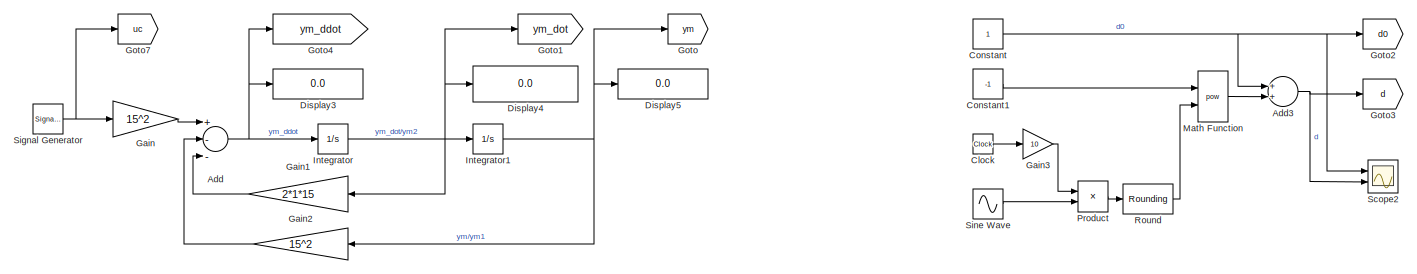
[diagram: root canvas - part 1/4, full width, top band]
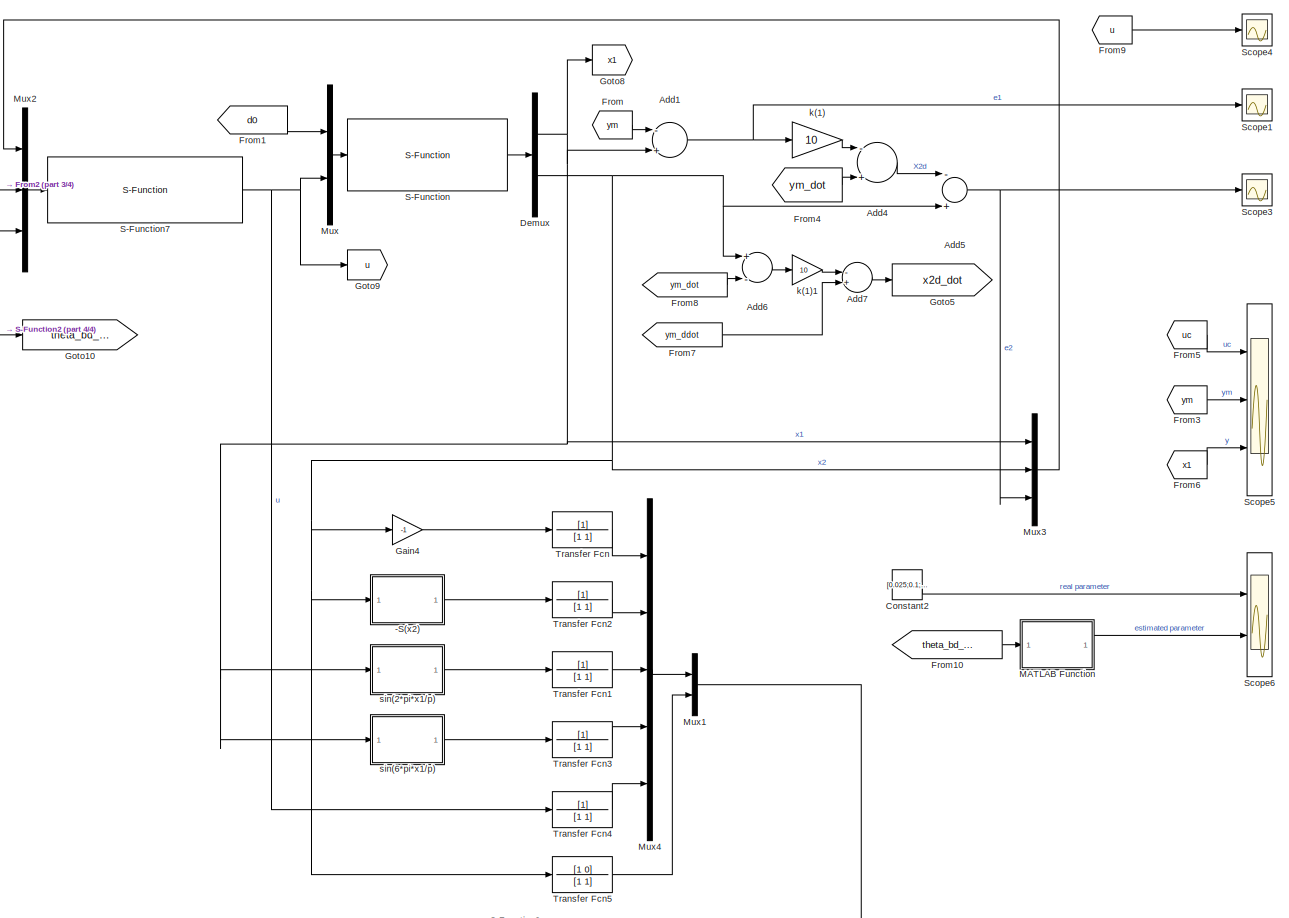
[diagram: root canvas - part 2/4, full width, middle band]
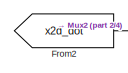
[diagram: root canvas - part 3/4, middle left region]
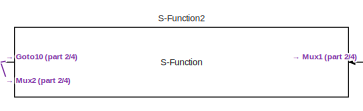
[diagram: root canvas - part 4/4, bottom center region]
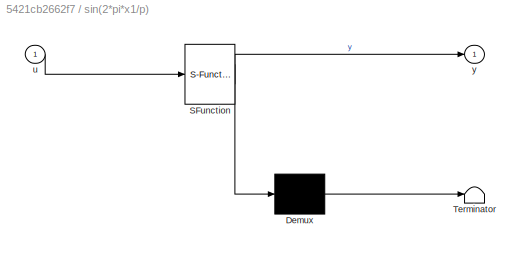
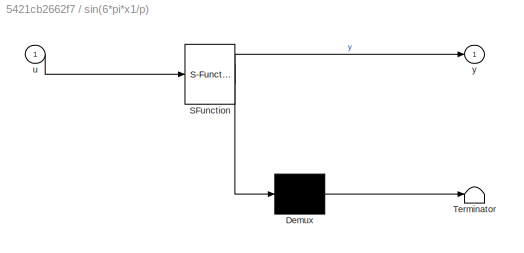
MODEL slx_5421cb2662f7
KIND model
CONFIG AbsTol = auto
CONFIG EnableMultiTasking = off
CONFIG FixedStep = 0.0005
CONFIG MaxStep = auto
CONFIG MinStep = auto
CONFIG RelTol = 1e-3
CONFIG SampleTimeConstraint = Unconstrained
CONFIG Solver = ode1
CONFIG SolverName = ode1
CONFIG StartTime = 0.0
CONFIG StopTime = 4
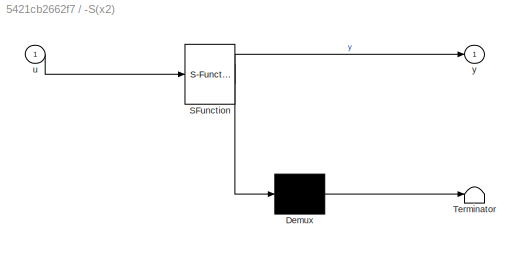
BLOCK [SubSystem] -S(x2)
  ErrorFcn = Stateflow.Translate.translate
  PermitHierarchicalResolution = ExplicitOnly
  Ports = [1, 1]
  RequestExecContextInheritance = off
  SFBlockType = MATLAB Function
  TreatAsAtomicUnit = on
BLOCK [Demux] -S(x2)/ Demux 
  Outputs = 1
  Ports = [1, 1]
BLOCK [S-Function] -S(x2)/ SFunction 
  EnableBusSupport = on
  FunctionName = sf_sfun
  PortCounts = [1 2]
  Ports = [1, 2]
  SFcnIsStateOwnerBlock = off
  SFunctionDeploymentMode = off
  Tag = Stateflow S-Function problem_4_6parameters_case1 14
BLOCK [Terminator] -S(x2)/ Terminator 
BLOCK [Inport] -S(x2)/u
  IconDisplay = Port number
BLOCK [Outport] -S(x2)/y
  IconDisplay = Port number
BLOCK [Sum] Add
  InputSameDT = off
  Inputs = +--
  OutDataTypeStr = Inherit: Inherit via internal rule
  Ports = [3, 1]
  SaturateOnIntegerOverflow = off
BLOCK [Sum] Add1
  InputSameDT = off
  Inputs = -+
  OutDataTypeStr = Inherit: Inherit via internal rule
  Ports = [2, 1]
  SaturateOnIntegerOverflow = off
BLOCK [Sum] Add3
  InputSameDT = off
  OutDataTypeStr = Inherit: Inherit via internal rule
  Ports = [2, 1]
  SaturateOnIntegerOverflow = off
BLOCK [Sum] Add4
  InputSameDT = off
  Inputs = -+
  OutDataTypeStr = Inherit: Inherit via internal rule
  Ports = [2, 1]
  SaturateOnIntegerOverflow = off
BLOCK [Sum] Add5
  InputSameDT = off
  Inputs = -+
  OutDataTypeStr = Inherit: Inherit via internal rule
  Ports = [2, 1]
  SaturateOnIntegerOverflow = off
BLOCK [Sum] Add6
  InputSameDT = off
  Inputs = +-
  OutDataTypeStr = Inherit: Inherit via internal rule
  Ports = [2, 1]
  SaturateOnIntegerOverflow = off
BLOCK [Sum] Add7
  InputSameDT = off
  Inputs = -+
  OutDataTypeStr = Inherit: Inherit via internal rule
  Ports = [2, 1]
  SaturateOnIntegerOverflow = off
BLOCK [Clock] Clock
BLOCK [Constant] Constant
BLOCK [Constant] Constant1
  Value = -1
BLOCK [Constant] Constant2
  Value = [0.025;0.1;0.1;0.01;0.05]
BLOCK [Demux] Demux
  DisplayOption = bar
  Outputs = 2
  Ports = [1, 2]
BLOCK [Display] Display3
  Decimation = 1
  Ports = [1]
BLOCK [Display] Display4
  Decimation = 1
  Ports = [1]
BLOCK [Display] Display5
  Decimation = 1
  Ports = [1]
BLOCK [From] From
  GotoTag = ym
BLOCK [From] From1
  GotoTag = d0
BLOCK [From] From10
  GotoTag = theta_bd_hat
BLOCK [From] From2
  GotoTag = x2d_dot
BLOCK [From] From3
  GotoTag = ym
BLOCK [From] From4
  GotoTag = ym_dot
BLOCK [From] From5
  GotoTag = uc
BLOCK [From] From6
  GotoTag = x1
BLOCK [From] From7
  GotoTag = ym_ddot
BLOCK [From] From8
  GotoTag = ym_dot
BLOCK [From] From9
  GotoTag = u
BLOCK [Gain] Gain
  Gain = 15^2
  OutDataTypeStr = Inherit: Inherit via internal rule
  ParamDataTypeStr = Inherit: Inherit via internal rule
  SaturateOnIntegerOverflow = off
BLOCK [Gain] Gain1
  Gain = 2*1*15
  OutDataTypeStr = Inherit: Inherit via internal rule
  ParamDataTypeStr = Inherit: Inherit via internal rule
  SaturateOnIntegerOverflow = off
BLOCK [Gain] Gain2
  Gain = 15^2
  OutDataTypeStr = Inherit: Inherit via internal rule
  ParamDataTypeStr = Inherit: Inherit via internal rule
  SaturateOnIntegerOverflow = off
BLOCK [Gain] Gain3
  Gain = 10
  OutDataTypeStr = Inherit: Inherit via internal rule
  ParamDataTypeStr = Inherit: Inherit via internal rule
  SaturateOnIntegerOverflow = off
BLOCK [Gain] Gain4
  Gain = -1
  OutDataTypeStr = Inherit: Inherit via internal rule
  ParamDataTypeStr = Inherit: Inherit via internal rule
  SaturateOnIntegerOverflow = off
BLOCK [Goto] Goto
  GotoTag = ym
BLOCK [Goto] Goto1
  GotoTag = ym_dot
BLOCK [Goto] Goto10
  GotoTag = theta_bd_hat
BLOCK [Goto] Goto2
  GotoTag = d0
BLOCK [Goto] Goto3
  GotoTag = d
BLOCK [Goto] Goto4
  GotoTag = ym_ddot
BLOCK [Goto] Goto5
  GotoTag = x2d_dot
BLOCK [Goto] Goto7
  GotoTag = uc
BLOCK [Goto] Goto8
  GotoTag = x1
BLOCK [Goto] Goto9
  GotoTag = u
BLOCK [Integrator] Integrator
  Ports = [1, 1]
BLOCK [Integrator] Integrator1
  Ports = [1, 1]
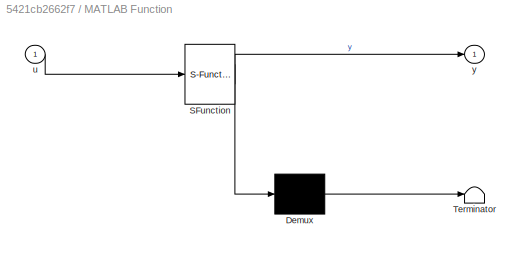
BLOCK [SubSystem] MATLAB Function
  ErrorFcn = Stateflow.Translate.translate
  PermitHierarchicalResolution = ExplicitOnly
  Ports = [1, 1]
  RequestExecContextInheritance = off
  SFBlockType = MATLAB Function
  TreatAsAtomicUnit = on
BLOCK [Demux] MATLAB Function/ Demux 
  Outputs = 1
  Ports = [1, 1]
BLOCK [S-Function] MATLAB Function/ SFunction 
  EnableBusSupport = on
  FunctionName = sf_sfun
  PortCounts = [1 2]
  Ports = [1, 2]
  SFcnIsStateOwnerBlock = off
  SFunctionDeploymentMode = off
  Tag = Stateflow S-Function problem_4_6parameters_case1 2
BLOCK [Terminator] MATLAB Function/ Terminator 
BLOCK [Inport] MATLAB Function/u
  IconDisplay = Port number
BLOCK [Outport] MATLAB Function/y
  IconDisplay = Port number
BLOCK [Math] Math Function
  Operator = pow
  Ports = [2, 1]
BLOCK [Mux] Mux
  DisplayOption = bar
  Inputs = 2
  Ports = [2, 1]
BLOCK [Mux] Mux1
  DisplayOption = bar
  Inputs = 2
  Ports = [2, 1]
BLOCK [Mux] Mux2
  DisplayOption = bar
  Inputs = 3
  Ports = [3, 1]
BLOCK [Mux] Mux3
  DisplayOption = bar
  Inputs = 3
  Ports = [3, 1]
BLOCK [Mux] Mux4
  DisplayOption = bar
  Inputs = 5
  Ports = [5, 1]
BLOCK [Product] Product
  InputSameDT = off
  OutDataTypeStr = Inherit: Inherit via internal rule
  Ports = [2, 1]
  RndMeth = Floor
  SaturateOnIntegerOverflow = off
BLOCK [Rounding] Round
  Operator = round
BLOCK [S-Function] S-Function
  EnableBusSupport = off
  FunctionName = Plant_case1
  Ports = [1, 1]
  SFcnIsStateOwnerBlock = off
  SFunctionDeploymentMode = off
BLOCK [S-Function] S-Function2
  EnableBusSupport = off
  FunctionName = IARC_Least_Square_Parameter_Estimation
  Ports = [1, 1]
  SFcnIsStateOwnerBlock = off
  SFunctionDeploymentMode = off
BLOCK [S-Function] S-Function7
  EnableBusSupport = off
  FunctionName = IARC_controller
  Ports = [1, 1]
  SFcnIsStateOwnerBlock = off
  SFunctionDeploymentMode = off
BLOCK [Scope] Scope1
  Floating = off
  NumInputPorts = 1
  Ports = [1]
  ScopeSpecificationString = Simulink.scopes.TimeScopeBlockCfg('CurrentConfiguration', extmgr.ConfigurationSet(extmgr.Configuration('Core','General UI',true,'FigureColor',[1 1 1]),extmgr.Configuration('Core','Source UI',true),extmgr.Configuration('Sources','WiredSimulink',true,'DataLoggingVariableName','ScopeData2'),extmgr.Configuration('Visuals','Time Domain',true,'SerializedDisplays',{struct('MinYLimReal','-0.00033','MaxYLi...<+1553ch>
BLOCK [Scope] Scope2
  Floating = off
  NumInputPorts = 2
  Ports = [2]
  ScopeSpecificationString = Simulink.scopes.TimeScopeBlockCfg('CurrentConfiguration', extmgr.ConfigurationSet(extmgr.Configuration('Core','General UI',true),extmgr.Configuration('Core','Source UI',true),extmgr.Configuration('Sources','WiredSimulink',true,'DataLoggingVariableName','ScopeData3'),extmgr.Configuration('Visuals','Time Domain',true,'SerializedDisplays',{struct('MinYLimReal','-0.25','MaxYLimReal','2.25','YLabelReal...<+1372ch>
BLOCK [Scope] Scope3
  Floating = off
  NumInputPorts = 1
  Ports = [1]
  ScopeSpecificationString = Simulink.scopes.TimeScopeBlockCfg('CurrentConfiguration', extmgr.ConfigurationSet(extmgr.Configuration('Core','General UI',true),extmgr.Configuration('Core','Source UI',true),extmgr.Configuration('Sources','WiredSimulink',true),extmgr.Configuration('Visuals','Time Domain',true,'SerializedDisplays',{struct('MinYLimReal','-1.08075','MaxYLimReal','1.43742','YLabelReal','','MinYLimMag','0.00000','MaxY...<+1347ch>
BLOCK [Scope] Scope4
  Floating = off
  NumInputPorts = 1
  Ports = [1]
  ScopeSpecificationString = Simulink.scopes.TimeScopeBlockCfg('CurrentConfiguration', extmgr.ConfigurationSet(extmgr.Configuration('Core','General UI',true,'FigureColor',[1 1 1]),extmgr.Configuration('Core','Source UI',true),extmgr.Configuration('Sources','WiredSimulink',true,'DataLoggingVariableName','ScopeData4'),extmgr.Configuration('Visuals','Time Domain',true,'SerializedDisplays',{struct('MinYLimReal','-3.15948','MaxYLi...<+1556ch>
BLOCK [Scope] Scope5
  Floating = off
  NumInputPorts = 3
  Ports = [3]
  ScopeSpecificationString = Simulink.scopes.TimeScopeBlockCfg('CurrentConfiguration', extmgr.ConfigurationSet(extmgr.Configuration('Core','General UI',true,'FigureColor',[1 1 1]),extmgr.Configuration('Core','Source UI',true),extmgr.Configuration('Sources','WiredSimulink',true,'DataLoggingVariableName','ScopeData5'),extmgr.Configuration('Visuals','Time Domain',true,'SerializedDisplays',{struct('MinYLimReal','-0.12527','MaxYLi...<+1744ch>
BLOCK [Scope] Scope6
  Floating = off
  NumInputPorts = 2
  Ports = [2]
  ScopeSpecificationString = Simulink.scopes.TimeScopeBlockCfg('CurrentConfiguration', extmgr.ConfigurationSet(extmgr.Configuration('Core','General UI',true,'FigureColor',[1 1 1]),extmgr.Configuration('Core','Source UI',true),extmgr.Configuration('Sources','WiredSimulink',true,'DataLoggingVariableName','ScopeData6'),extmgr.Configuration('Visuals','Time Domain',true,'PlotType','Line','SerializedDisplays',{struct('MinYLimReal',...<+2959ch>
BLOCK [SignalGenerator] Signal Generator
  Amplitude = 0.1
  Frequency = 1/1.2
  Ports = [0, 1]
  WaveForm = square
BLOCK [Sin] Sine Wave
  Frequency = 20
  Ports = [0, 1]
  SampleTime = 0
BLOCK [TransferFcn] Transfer Fcn
  Denominator = [1 1]
BLOCK [TransferFcn] Transfer Fcn1
  Denominator = [1 1]
BLOCK [TransferFcn] Transfer Fcn2
  Denominator = [1 1]
BLOCK [TransferFcn] Transfer Fcn3
  Denominator = [1 1]
BLOCK [TransferFcn] Transfer Fcn4
  Denominator = [1 1]
BLOCK [TransferFcn] Transfer Fcn5
  Denominator = [1 1]
  Numerator = [1 0]
BLOCK [Gain] k(1)
  Gain = 10
  OutDataTypeStr = Inherit: Inherit via internal rule
  ParamDataTypeStr = Inherit: Inherit via internal rule
  SaturateOnIntegerOverflow = off
BLOCK [Gain] k(1)1
  Gain = 10
  OutDataTypeStr = Inherit: Inherit via internal rule
  ParamDataTypeStr = Inherit: Inherit via internal rule
  SaturateOnIntegerOverflow = off
BLOCK [SubSystem] sin(2*pi*x1//p)
  ErrorFcn = Stateflow.Translate.translate
  PermitHierarchicalResolution = ExplicitOnly
  Ports = [1, 1]
  RequestExecContextInheritance = off
  SFBlockType = MATLAB Function
  TreatAsAtomicUnit = on
BLOCK [Demux] sin(2*pi*x1//p)/ Demux 
  Outputs = 1
  Ports = [1, 1]
BLOCK [S-Function] sin(2*pi*x1//p)/ SFunction 
  EnableBusSupport = on
  FunctionName = sf_sfun
  PortCounts = [1 2]
  Ports = [1, 2]
  SFcnIsStateOwnerBlock = off
  SFunctionDeploymentMode = off
  Tag = Stateflow S-Function problem_4_6parameters_case1 15
BLOCK [Terminator] sin(2*pi*x1//p)/ Terminator 
BLOCK [Inport] sin(2*pi*x1//p)/u
  IconDisplay = Port number
BLOCK [Outport] sin(2*pi*x1//p)/y
  IconDisplay = Port number
BLOCK [SubSystem] sin(6*pi*x1//p)
  ErrorFcn = Stateflow.Translate.translate
  PermitHierarchicalResolution = ExplicitOnly
  Ports = [1, 1]
  RequestExecContextInheritance = off
  SFBlockType = MATLAB Function
  TreatAsAtomicUnit = on
BLOCK [Demux] sin(6*pi*x1//p)/ Demux 
  Outputs = 1
  Ports = [1, 1]
BLOCK [S-Function] sin(6*pi*x1//p)/ SFunction 
  EnableBusSupport = on
  FunctionName = sf_sfun
  PortCounts = [1 2]
  Ports = [1, 2]
  SFcnIsStateOwnerBlock = off
  SFunctionDeploymentMode = off
  Tag = Stateflow S-Function problem_4_6parameters_case1 16
BLOCK [Terminator] sin(6*pi*x1//p)/ Terminator 
BLOCK [Inport] sin(6*pi*x1//p)/u
  IconDisplay = Port number
BLOCK [Outport] sin(6*pi*x1//p)/y
  IconDisplay = Port number
LINE -S(x2):1 -> Transfer Fcn2:1
NET Add1:1 -> Scope1:1, k(1):1
NET Add3:1 -> Goto3:1, Scope2:2
LINE Add4:1 -> Add5:1
NET Add5:1 -> Mux3:3, Scope3:1
LINE Add6:1 -> k(1)1:1
LINE Add7:1 -> Goto5:1
NET Add:1 -> Display3:1, Goto4:1, Integrator:1
LINE Clock:1 -> Gain3:1
LINE Constant1:1 -> Math Function:1
LINE Constant2:1 -> Scope6:1
NET Constant:1 -> Add3:1, Goto2:1, Scope2:1
NET Demux:1 -> Add1:2, Goto8:1, Mux3:1, sin(2*pi*x1//p):1, sin(6*pi*x1//p):1
NET Demux:2 -> -S(x2):1, Add5:2, Add6:1, Gain4:1, Mux3:2, Transfer Fcn5:1
LINE From10:1 -> MATLAB Function:1
LINE From1:1 -> Mux:1
LINE From2:1 -> Mux2:2
LINE From3:1 -> Scope5:2
LINE From4:1 -> Add4:2
LINE From5:1 -> Scope5:1
LINE From6:1 -> Scope5:3
LINE From7:1 -> Add7:2
LINE From8:1 -> Add6:2
LINE From9:1 -> Scope4:1
LINE From:1 -> Add1:1
LINE Gain1:1 -> Add:3
LINE Gain2:1 -> Add:2
LINE Gain3:1 -> Product:1
LINE Gain4:1 -> Transfer Fcn:1
LINE Gain:1 -> Add:1
NET Integrator1:1 -> Display5:1, Gain2:1, Goto:1
NET Integrator:1 -> Display4:1, Gain1:1, Goto1:1, Integrator1:1
LINE MATLAB Function:1 -> Scope6:2
LINE Math Function:1 -> Add3:2
LINE Mux1:1 -> S-Function2:1
LINE Mux2:1 -> S-Function7:1
LINE Mux3:1 -> Mux2:1
LINE Mux4:1 -> Mux1:1
LINE Mux:1 -> S-Function:1
LINE Product:1 -> Round:1
LINE Round:1 -> Math Function:2
NET S-Function2:1 -> Goto10:1, Mux2:3
NET S-Function7:1 -> Goto9:1, Mux:2, Transfer Fcn4:1
LINE S-Function:1 -> Demux:1
NET Signal Generator:1 -> Gain:1, Goto7:1
LINE Sine Wave:1 -> Product:2
LINE Transfer Fcn1:1 -> Mux4:3
LINE Transfer Fcn2:1 -> Mux4:2
LINE Transfer Fcn3:1 -> Mux4:4
LINE Transfer Fcn4:1 -> Mux4:5
LINE Transfer Fcn5:1 -> Mux1:2
LINE Transfer Fcn:1 -> Mux4:1
LINE k(1)1:1 -> Add7:1
LINE k(1):1 -> Add4:1
LINE sin(2*pi*x1//p):1 -> Transfer Fcn1:1
LINE sin(6*pi*x1//p):1 -> Transfer Fcn3:1
note: NET lines group one-source signal fan-out (src -> all destinations, sorted); 1:1 wires keep LINE
CHART MATLAB Function states=1 transitions=1
  STATE_LABEL 'eML_blk_kernel()'
  STATE_LABEL 'SCRIPT:\nfunction y = fcn(u)\npara_mid=[1;u(1:4)];\npara_hat=para_mid/u(5);\ny = para_hat;\n'
CHART -S(x2) states=1 transitions=1
  STATE_LABEL 'eML_blk_kernel()'
  STATE_LABEL 'SCRIPT:\nfunction y = fcn(u)\npara=u*1000\nif para>1\n    y=1\nelseif para<-1\n    y=-1\nelse\n    y=para;\nend\n\n\n'
CHART sin(2*pi*x1//p) states=1 transitions=1
  STATE_LABEL 'eML_blk_kernel()'
  STATE_LABEL 'SCRIPT:\nfunction y = fcn(u)\np=0.06\ny = sin(u*2*pi/p);\n'
CHART sin(6*pi*x1//p) states=1 transitions=1
  STATE_LABEL 'eML_blk_kernel()'
  STATE_LABEL 'SCRIPT:\nfunction y = fcn(u)\n\ny = u;\n'
